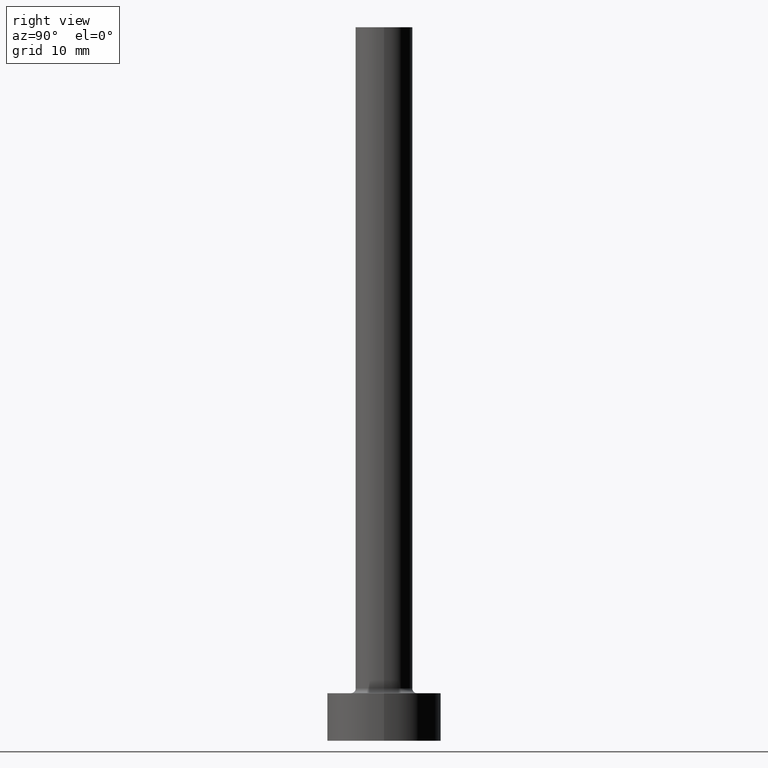
[diagram: clean part render]
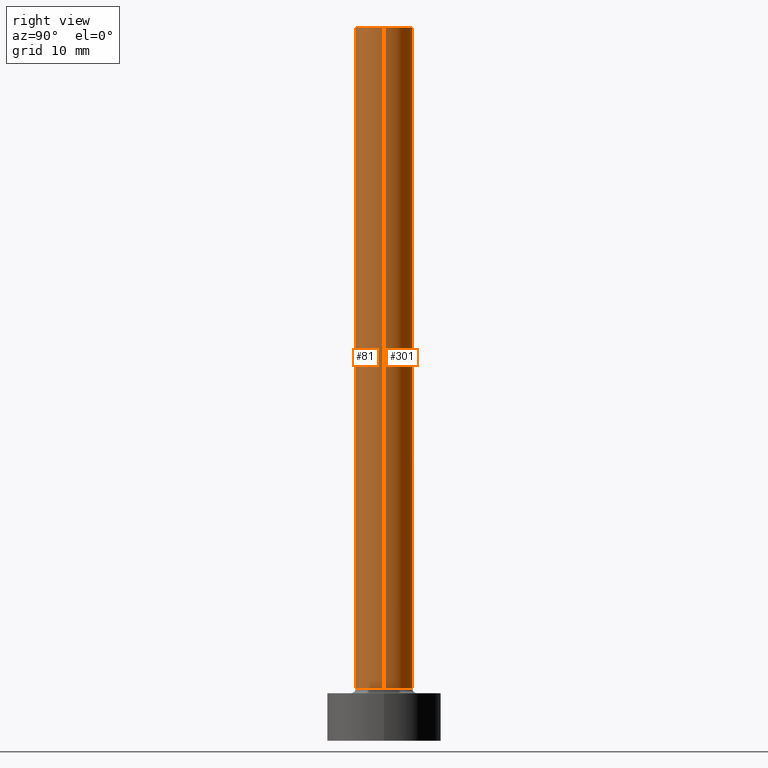
[diagram: same view with one multi-face feature highlighted, each face labeled with its STEP entity id]
A machine part, right view. The highlighted faces form ONE feature: a constant-radius fillet chain: 2 tangent blend faces with common blend radius 3 mm. The faces share edges in the B-rep.
Their STEP definitions:
[1] entity #81 (Cylinder):
#27 = CIRCLE ( 'NONE', #456, 3.000000000000000444 ) ;
#32 = EDGE_LOOP ( 'NONE', ( #350, #237, #420, #55 ) ) ;
#55 = ORIENTED_EDGE ( 'NONE', *, *, #96, .T. ) ;
#61 = CARTESIAN_POINT ( 'NONE',  ( 0.000000000000000000, 0.000000000000000000, 5.500000000000005329 ) ) ;
#62 = VERTEX_POINT ( 'NONE', #64 ) ;
#64 = CARTESIAN_POINT ( 'NONE',  ( -3.000000000000000444, 0.000000000000000000, 5.500000000000005329 ) ) ;
#74 = CARTESIAN_POINT ( 'NONE',  ( 0.000000000000000000, 0.000000000000000000, 75.00000000000001421 ) ) ;
#81 = ADVANCED_FACE ( 'NONE', ( #366 ), #329, .T. ) ;
#96 = EDGE_CURVE ( 'NONE', #62, #381, #239, .T. ) ;
#149 = CARTESIAN_POINT ( 'NONE',  ( -3.000000000000000444, 0.000000000000000000, 75.00000000000001421 ) ) ;
#150 = VECTOR ( 'NONE', #248, 1000.000000000000000 ) ;
#174 = DIRECTION ( 'NONE',  ( 1.000000000000000000, 0.000000000000000000, 0.000000000000000000 ) ) ;
#180 = DIRECTION ( 'NONE',  ( 0.000000000000000000, 0.000000000000000000, 1.000000000000000000 ) ) ;
#195 = DIRECTION ( 'NONE',  ( 0.000000000000000000, 0.000000000000000000, 1.000000000000000000 ) ) ;
#215 = LINE ( 'NONE', #246, #150 ) ;
#217 = EDGE_CURVE ( 'NONE', #333, #381, #409, .T. ) ;
#235 = DIRECTION ( 'NONE',  ( -1.000000000000000000, 0.000000000000000000, 0.000000000000000000 ) ) ;
#237 = ORIENTED_EDGE ( 'NONE', *, *, #352, .F. ) ;
#239 = CIRCLE ( 'NONE', #297, 3.000000000000000444 ) ;
#246 = CARTESIAN_POINT ( 'NONE',  ( -3.000000000000000444, 0.000000000000000000, 75.00000000000001421 ) ) ;
#248 = DIRECTION ( 'NONE',  ( -0.000000000000000000, -0.000000000000000000, -1.000000000000000000 ) ) ;
#252 = EDGE_CURVE ( 'NONE', #392, #62, #215, .T. ) ;
#256 = CARTESIAN_POINT ( 'NONE',  ( 3.000000000000000444, 3.673940397442060361E-16, 5.500000000000005329 ) ) ;
#297 = AXIS2_PLACEMENT_3D ( 'NONE', #61, #195, #452 ) ;
#309 = VECTOR ( 'NONE', #410, 1000.000000000000000 ) ;
#329 = CYLINDRICAL_SURFACE ( 'NONE', #330, 3.000000000000000444 ) ;
#330 = AXIS2_PLACEMENT_3D ( 'NONE', #448, #336, #235 ) ;
#333 = VERTEX_POINT ( 'NONE', #428 ) ;
#336 = DIRECTION ( 'NONE',  ( -0.000000000000000000, -0.000000000000000000, -1.000000000000000000 ) ) ;
#350 = ORIENTED_EDGE ( 'NONE', *, *, #217, .F. ) ;
#352 = EDGE_CURVE ( 'NONE', #392, #333, #27, .T. ) ;
#366 = FACE_OUTER_BOUND ( 'NONE', #32, .T. ) ;
#381 = VERTEX_POINT ( 'NONE', #256 ) ;
#392 = VERTEX_POINT ( 'NONE', #149 ) ;
#409 = LINE ( 'NONE', #446, #309 ) ;
#410 = DIRECTION ( 'NONE',  ( -0.000000000000000000, -0.000000000000000000, -1.000000000000000000 ) ) ;
#420 = ORIENTED_EDGE ( 'NONE', *, *, #252, .T. ) ;
#428 = CARTESIAN_POINT ( 'NONE',  ( 3.000000000000000444, 3.673940397442060361E-16, 75.00000000000001421 ) ) ;
#446 = CARTESIAN_POINT ( 'NONE',  ( 3.000000000000000444, 3.673940397442060361E-16, 75.00000000000001421 ) ) ;
#448 = CARTESIAN_POINT ( 'NONE',  ( 0.000000000000000000, 0.000000000000000000, 75.00000000000001421 ) ) ;
#452 = DIRECTION ( 'NONE',  ( 1.000000000000000000, 0.000000000000000000, 0.000000000000000000 ) ) ;
#456 = AXIS2_PLACEMENT_3D ( 'NONE', #74, #180, #174 ) ;
[2] entity #301 (Cylinder):
#16 = EDGE_CURVE ( 'NONE', #381, #62, #399, .T. ) ;
#30 = CYLINDRICAL_SURFACE ( 'NONE', #63, 3.000000000000000444 ) ;
#35 = DIRECTION ( 'NONE',  ( 0.000000000000000000, 0.000000000000000000, 1.000000000000000000 ) ) ;
#38 = ORIENTED_EDGE ( 'NONE', *, *, #217, .T. ) ;
#39 = ORIENTED_EDGE ( 'NONE', *, *, #252, .F. ) ;
#43 = DIRECTION ( 'NONE',  ( -0.000000000000000000, -0.000000000000000000, -1.000000000000000000 ) ) ;
#62 = VERTEX_POINT ( 'NONE', #64 ) ;
#63 = AXIS2_PLACEMENT_3D ( 'NONE', #169, #43, #281 ) ;
#64 = CARTESIAN_POINT ( 'NONE',  ( -3.000000000000000444, 0.000000000000000000, 5.500000000000005329 ) ) ;
#77 = CARTESIAN_POINT ( 'NONE',  ( 0.000000000000000000, 0.000000000000000000, 75.00000000000001421 ) ) ;
#149 = CARTESIAN_POINT ( 'NONE',  ( -3.000000000000000444, 0.000000000000000000, 75.00000000000001421 ) ) ;
#150 = VECTOR ( 'NONE', #248, 1000.000000000000000 ) ;
#169 = CARTESIAN_POINT ( 'NONE',  ( 0.000000000000000000, 0.000000000000000000, 75.00000000000001421 ) ) ;
#172 = DIRECTION ( 'NONE',  ( 1.000000000000000000, 0.000000000000000000, 0.000000000000000000 ) ) ;
#215 = LINE ( 'NONE', #246, #150 ) ;
#217 = EDGE_CURVE ( 'NONE', #333, #381, #409, .T. ) ;
#221 = EDGE_LOOP ( 'NONE', ( #312, #38, #413, #39 ) ) ;
#246 = CARTESIAN_POINT ( 'NONE',  ( -3.000000000000000444, 0.000000000000000000, 75.00000000000001421 ) ) ;
#248 = DIRECTION ( 'NONE',  ( -0.000000000000000000, -0.000000000000000000, -1.000000000000000000 ) ) ;
#252 = EDGE_CURVE ( 'NONE', #392, #62, #215, .T. ) ;
#254 = AXIS2_PLACEMENT_3D ( 'NONE', #374, #35, #172 ) ;
#256 = CARTESIAN_POINT ( 'NONE',  ( 3.000000000000000444, 3.673940397442060361E-16, 5.500000000000005329 ) ) ;
#281 = DIRECTION ( 'NONE',  ( -1.000000000000000000, 0.000000000000000000, 0.000000000000000000 ) ) ;
#288 = DIRECTION ( 'NONE',  ( 0.000000000000000000, 0.000000000000000000, 1.000000000000000000 ) ) ;
#290 = DIRECTION ( 'NONE',  ( 1.000000000000000000, 0.000000000000000000, 0.000000000000000000 ) ) ;
#301 = ADVANCED_FACE ( 'NONE', ( #339 ), #30, .T. ) ;
#309 = VECTOR ( 'NONE', #410, 1000.000000000000000 ) ;
#312 = ORIENTED_EDGE ( 'NONE', *, *, #439, .F. ) ;
#333 = VERTEX_POINT ( 'NONE', #428 ) ;
#339 = FACE_OUTER_BOUND ( 'NONE', #221, .T. ) ;
#368 = CIRCLE ( 'NONE', #390, 3.000000000000000444 ) ;
#374 = CARTESIAN_POINT ( 'NONE',  ( 0.000000000000000000, 0.000000000000000000, 5.500000000000005329 ) ) ;
#381 = VERTEX_POINT ( 'NONE', #256 ) ;
#390 = AXIS2_PLACEMENT_3D ( 'NONE', #77, #288, #290 ) ;
#392 = VERTEX_POINT ( 'NONE', #149 ) ;
#399 = CIRCLE ( 'NONE', #254, 3.000000000000000444 ) ;
#409 = LINE ( 'NONE', #446, #309 ) ;
#410 = DIRECTION ( 'NONE',  ( -0.000000000000000000, -0.000000000000000000, -1.000000000000000000 ) ) ;
#413 = ORIENTED_EDGE ( 'NONE', *, *, #16, .T. ) ;
#428 = CARTESIAN_POINT ( 'NONE',  ( 3.000000000000000444, 3.673940397442060361E-16, 75.00000000000001421 ) ) ;
#439 = EDGE_CURVE ( 'NONE', #333, #392, #368, .T. ) ;
#446 = CARTESIAN_POINT ( 'NONE',  ( 3.000000000000000444, 3.673940397442060361E-16, 75.00000000000001421 ) ) ;